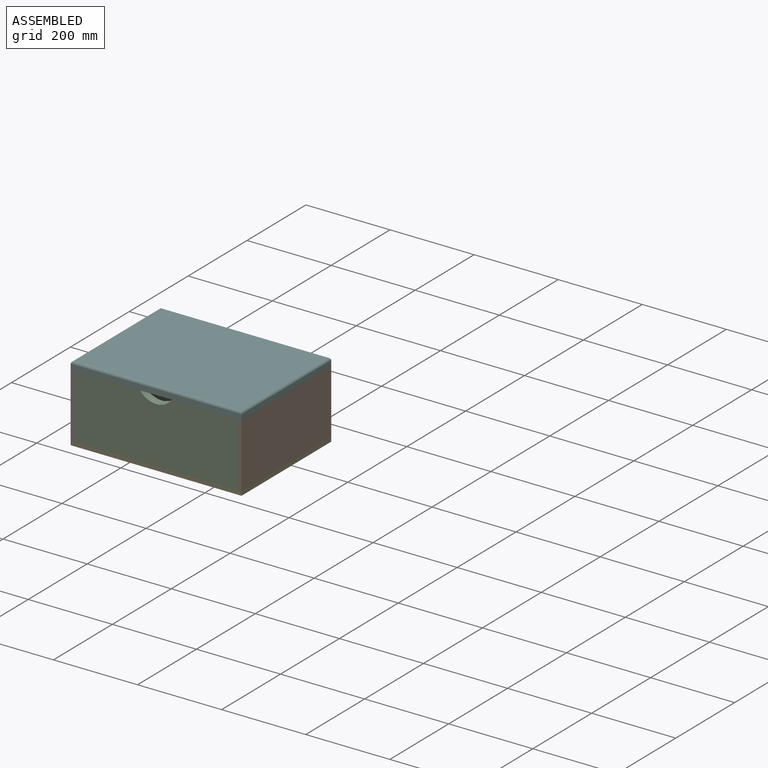
[diagram: assembled view]
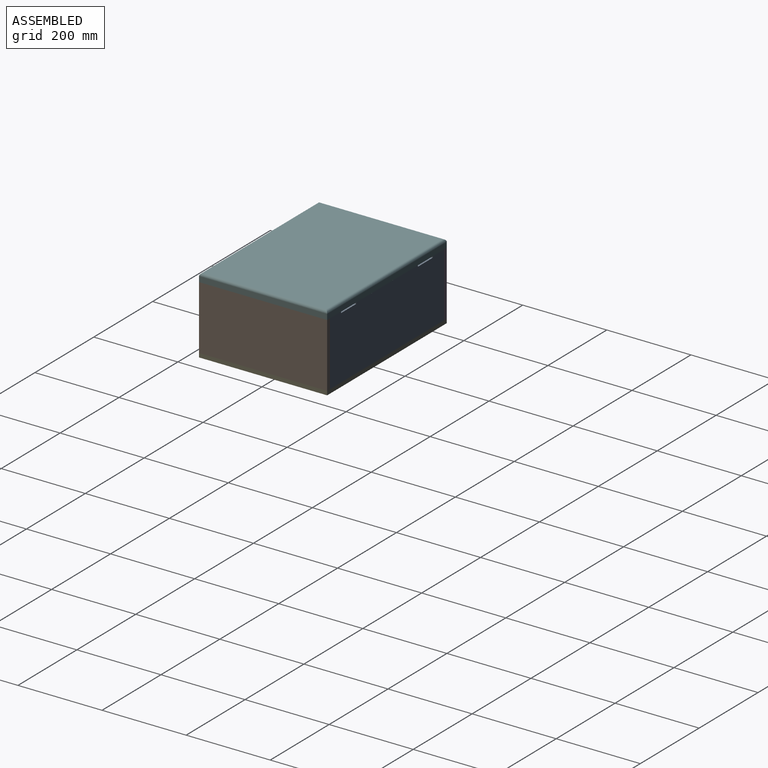
[diagram: assembled view, second angle]
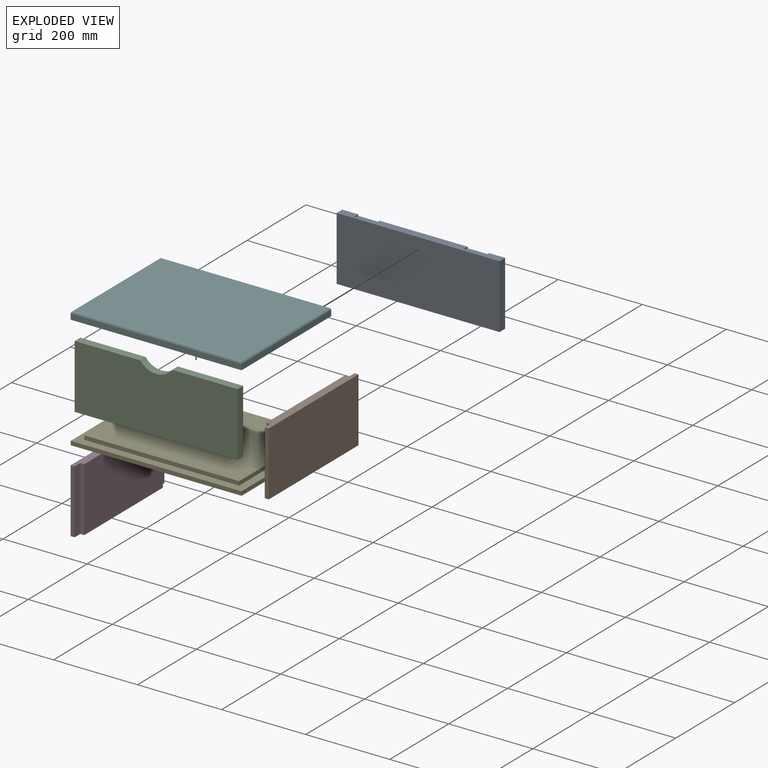
[diagram: exploded view]
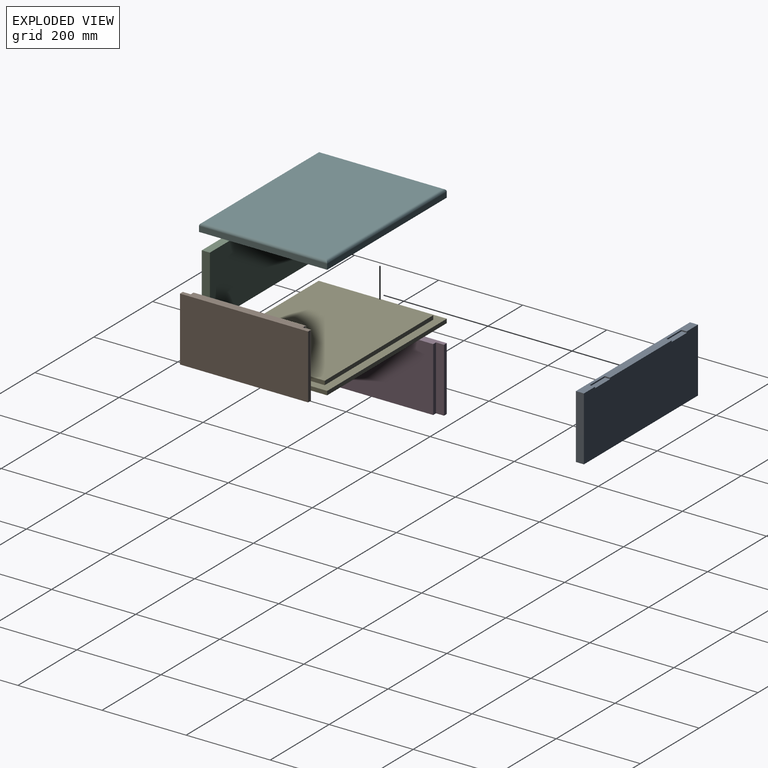
[diagram: exploded view, second angle]
ASSEMBLY  parts=6 mates=15
PART A: 14 faces, bbox 387.4x19.1x152.4 mm
  f0: plane 387.35x152.4mm, normal (0,1,0), area 58709.6mm2, adj f1,f2,f4,f5,f7,f8,f9,f10
  f1: plane 387.35x19.05mm, normal (0,0,1), area 6088.7mm2, adj f0,f2,f3,f4,f6,f7,f8,f10
  f2: plane 152.4x19.05mm, normal (-1,0,0), area 2903.2mm2, adj f0,f1,f3,f5
  f3: plane 387.35x152.4mm, normal (0,-1,0), area 59032.1mm2, adj f1,f2,f4,f5
  f4: plane 152.4x19.05mm, normal (1,0,0), area 2903.2mm2, adj f0,f1,f3,f5
  f5: plane 387.35x19.05mm, normal (0,0,-1), area 7379mm2, adj f0,f2,f3,f4
  f6: plane 50.8x3.18mm, normal (0,1,0), area 161.3mm2, adj f1,f7,f8,f9
  f7: plane 12.7x3.18mm, normal (-1,0,0), area 40.3mm2, adj f0,f1,f6,f9
  f8: plane 12.7x3.18mm, normal (1,0,0), area 40.3mm2, adj f0,f1,f6,f9
  f9: plane 50.8x12.7mm, normal (0,0,1), area 645.2mm2, adj f0,f6,f7,f8
  f10: plane 12.7x3.18mm, normal (1,0,0), area 40.3mm2, adj f0,f1,f11,f13
  f11: plane 50.8x3.18mm, normal (0,1,0), area 161.3mm2, adj f1,f10,f12,f13
  f12: plane 12.7x3.18mm, normal (-1,0,0), area 40.3mm2, adj f0,f1,f11,f13
  f13: plane 50.8x12.7mm, normal (0,0,1), area 645.2mm2, adj f0,f10,f11,f12
PART B: 10 faces, bbox 19.1x304.8x152.4 mm
  f0: plane 304.8x152.4mm, normal (-1,0,0), area 46451.5mm2, adj f1,f7,f8,f9
  f1: plane 152.4x9.53mm, normal (0,-1,0), area 1451.6mm2, adj f0,f2,f8,f9
  f2: plane 152.4x19.05mm, normal (1,0,0), area 2903.2mm2, adj f1,f3,f8,f9
  f3: plane 152.4x9.53mm, normal (0,-1,0), area 1451.6mm2, adj f2,f4,f8,f9
  f4: plane 266.7x152.4mm, normal (1,0,0), area 40645.1mm2, adj f3,f5,f8,f9
  f5: plane 152.4x9.53mm, normal (0,1,0), area 1451.6mm2, adj f4,f6,f8,f9
  f6: plane 152.4x19.05mm, normal (1,0,0), area 2903.2mm2, adj f5,f7,f8,f9
  f7: plane 152.4x9.53mm, normal (0,1,0), area 1451.6mm2, adj f0,f6,f8,f9
  f8: plane 304.8x19.05mm, normal (0,0,1), area 5443.5mm2, adj f0,f1,f2,f3,f4,f5,f6,f7
  f9: plane 304.8x19.05mm, normal (0,0,-1), area 5443.5mm2, adj f0,f1,f2,f3,f4,f5,f6,f7
PART C: 8 faces, bbox 387.4x19.1x152.4 mm
  f0: plane 155.58x19.05mm, normal (0,0,1), area 2963.7mm2, adj f1,f2,f4,f7
  f1: plane 387.35x152.4mm, normal (0,-1,0), area 58017.6mm2, adj f0,f3,f4,f5,f6,f7
  f2: plane 387.35x152.4mm, normal (0,1,0), area 58017.6mm2, adj f0,f3,f4,f5,f6,f7
  f3: plane 152.4x19.05mm, normal (-1,0,0), area 2903.2mm2, adj f1,f2,f5,f6
  f4: plane 152.4x19.05mm, normal (1,0,0), area 2903.2mm2, adj f0,f1,f2,f6
  f5: plane 155.58x19.05mm, normal (0,0,1), area 2963.7mm2, adj f1,f2,f3,f7
  f6: plane 387.35x19.05mm, normal (0,0,-1), area 7379mm2, adj f1,f2,f3,f4
  f7: cylinder r=47.62mm len=76.2mm, axis (0,-1,0), area 1682.6mm2, adj f0,f1,f2,f5
PART D: same geometry as B
PART E: 11 faces, bbox 406.4x304.8x19.1 mm
  f0: plane 406.4x9.53mm, normal (0,1,0), area 3871mm2, adj f1,f3,f4,f5
  f1: plane 304.8x9.53mm, normal (-1,0,0), area 2903.2mm2, adj f0,f2,f4,f5
  f2: plane 406.4x9.53mm, normal (0,-1,0), area 3871mm2, adj f1,f3,f4,f5
  f3: plane 304.8x9.53mm, normal (1,0,0), area 2903.2mm2, adj f0,f2,f4,f5
  f4: plane 406.4x304.8mm, normal (0,0,1), area 25645.1mm2, adj f0,f1,f2,f3,f7,f8,f9,f10
  f5: plane 406.4x304.8mm, normal (0,0,-1), area 123870.7mm2, adj f0,f1,f2,f3
  f6: plane 368.3x266.7mm, normal (0,0,1), area 98225.6mm2, adj f7,f8,f9,f10
  f7: plane 368.3x9.53mm, normal (0,1,0), area 3508.1mm2, adj f4,f6,f8,f10
  f8: plane 266.7x9.53mm, normal (1,0,0), area 2540.3mm2, adj f4,f6,f7,f9
  f9: plane 368.3x9.53mm, normal (0,-1,0), area 3508.1mm2, adj f4,f6,f8,f10
  f10: plane 266.7x9.53mm, normal (-1,0,0), area 2540.3mm2, adj f4,f6,f7,f9
PART F: 10 faces, bbox 406.4x304.8x19.1 mm
  f0: plane 406.4x12.7mm, normal (0,1,0), area 5161.3mm2, adj f1,f3,f5,f9
  f1: plane 304.8x12.7mm, normal (-1,0,0), area 3871mm2, adj f0,f2,f5,f7
  f2: plane 406.4x12.7mm, normal (0,-1,0), area 5161.3mm2, adj f1,f3,f5,f6
  f3: plane 304.8x12.7mm, normal (1,0,0), area 3871mm2, adj f0,f2,f5,f8
  f4: plane 393.7x292.1mm, normal (0,0,1), area 114999.8mm2, adj f6,f7,f8,f9
  f5: plane 406.4x304.8mm, normal (0,0,-1), area 123870.7mm2, adj f0,f1,f2,f3
  f6: cylinder r=6.35mm len=406.4mm, axis (-1,0,0), area 4007.6mm2, adj f2,f4,f7,f8
  f7: cylinder r=6.35mm len=304.8mm, axis (0,1,0), area 2994.2mm2, adj f1,f4,f6,f9
  f8: cylinder r=6.35mm len=304.8mm, axis (0,-1,0), area 2994.2mm2, adj f3,f4,f6,f9
  f9: cylinder r=6.35mm len=406.4mm, axis (1,0,0), area 4007.6mm2, adj f0,f4,f7,f8
PLACE A t=(-306.55,-80.84,75.71)mm
PLACE B rot(axis=(0,1,0),180deg) t=(-666.27,-80.84,228.11)mm
PLACE C t=(-306.55,-80.84,75.71)mm
PLACE D t=(-306.55,-80.84,75.71)mm
PLACE E t=(-306.55,-80.84,66.19)mm
PLACE F t=(-306.55,-80.84,75.71)mm
MATE planar A.f1 <-> B.f9  axis (0,0,1) through (-486.41,166.8,228.11)mm
MATE planar D.f7 <-> A.f0  axis (0,1,0) through (-684.85,177,151.91)mm
MATE planar B.f7 <-> A.f0  axis (0,1,0) through (-287.97,177,151.91)mm
MATE planar E.f2 <-> C.f1  axis (0,-1,0) through (-486.41,-127.8,70.95)mm
MATE planar F.f1 <-> D.f0  axis (-1,0,0) through (-689.61,24.6,234.46)mm
MATE planar A.f1 <-> F.f5  axis (0,0,1) through (-486.41,177,228.11)mm
MATE planar F.f0 <-> A.f0  axis (0,1,0) through (-486.41,177,234.46)mm
MATE planar A.f2 <-> D.f6  axis (-1,0,0) through (-680.09,167.48,151.91)mm
MATE planar E.f4 <-> D.f9  axis (0,0,1) through (-486.41,24.6,75.71)mm
MATE planar C.f3 <-> D.f2  axis (-1,0,0) through (-680.09,-118.27,151.91)mm
MATE planar E.f1 <-> D.f0  axis (-1,0,0) through (-689.61,24.6,70.95)mm
MATE planar D.f8 <-> A.f1  axis (0,0,1) through (-680.4,24.6,228.11)mm
MATE planar D.f1 <-> C.f1  axis (0,-1,0) through (-684.85,-127.8,151.91)mm
MATE planar C.f5 <-> D.f8  axis (0,0,1) through (-680.09,-127.8,228.11)mm
MATE planar B.f2 <-> A.f4  axis (-1,0,0) through (-292.74,-127.8,75.71)mm
